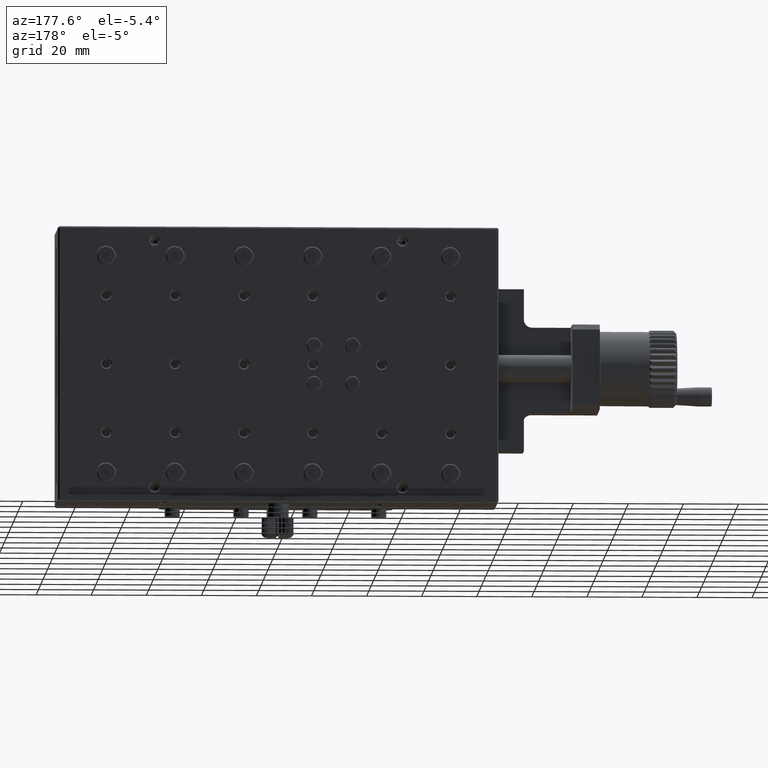
[diagram: clean part render]
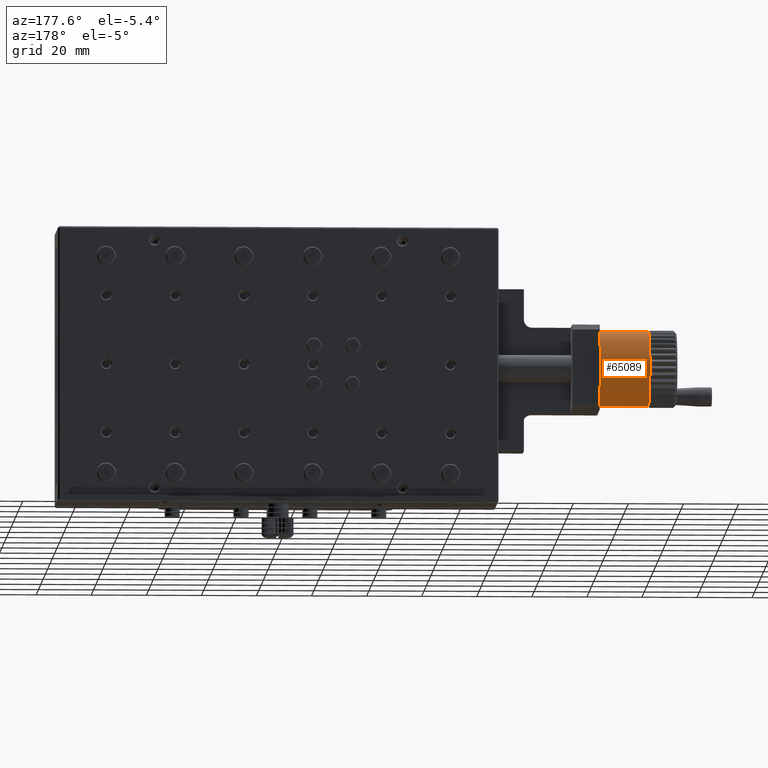
[diagram: same view with one face highlighted and labeled with its STEP entity id]
A machine part, auxiliary view. The second image highlights one B-rep face of the part: STEP entity #65089.
In plain terms, the highlighted cylindrical surface (bore or boss wall) has radius 13.5 mm, axis along (1, 0, 0).
Its self-contained STEP definition (entity closure, byte-faithful):
#91 = AXIS2_PLACEMENT_3D ( 'NONE', #26480, #4098, #4468 ) ;
#209 = ORIENTED_EDGE ( 'NONE', *, *, #65508, .T. ) ;
#292 = DIRECTION ( 'NONE',  ( 0.000000000000000000, 0.000000000000000000, -1.000000000000000000 ) ) ;
#353 = CARTESIAN_POINT ( 'NONE',  ( -214.9999999999999716, 15.50000000000000000, 0.000000000000000000 ) ) ;
#442 = CARTESIAN_POINT ( 'NONE',  ( 250.0000000000000000, 15.50000000000000000, 0.000000000000000000 ) ) ;
#550 = DIRECTION ( 'NONE',  ( 1.000000000000000000, 0.000000000000000000, 0.000000000000000000 ) ) ;
#581 = DIRECTION ( 'NONE',  ( 0.000000000000000000, 0.000000000000000000, -1.000000000000000000 ) ) ;
#632 = AXIS2_PLACEMENT_3D ( 'NONE', #62389, #40017, #72343 ) ;
#634 = DIRECTION ( 'NONE',  ( 0.000000000000000000, 0.000000000000000000, -1.000000000000000000 ) ) ;
#782 = CARTESIAN_POINT ( 'NONE',  ( -214.9999999999999716, 16.82432834666926169, -13.43488572449383689 ) ) ;
#908 = ORIENTED_EDGE ( 'NONE', *, *, #4540, .T. ) ;
#1023 = AXIS2_PLACEMENT_3D ( 'NONE', #29952, #44747, #62595 ) ;
#1188 = DIRECTION ( 'NONE',  ( 0.000000000000000000, 0.000000000000000000, -1.000000000000000000 ) ) ;
#1230 = VERTEX_POINT ( 'NONE', #5654 ) ;
#1260 = CARTESIAN_POINT ( 'NONE',  ( -197.0000000000000000, 25.00000000000000000, 9.591663046625438227 ) ) ;
#1343 = DIRECTION ( 'NONE',  ( 1.000000000000000000, 0.000000000000000000, 0.000000000000000000 ) ) ;
#1388 = CARTESIAN_POINT ( 'NONE',  ( -214.9999999999999716, 28.86194192194255947, 1.925748704954541424 ) ) ;
#1409 = DIRECTION ( 'NONE',  ( -1.000000000000000000, -0.000000000000000000, -0.000000000000000000 ) ) ;
#1951 = ORIENTED_EDGE ( 'NONE', *, *, #54478, .T. ) ;
#1973 = CARTESIAN_POINT ( 'NONE',  ( -197.0000000000000000, 3.665386240034578691, 6.495530552036306915 ) ) ;
#2017 = CIRCLE ( 'NONE', #37191, 13.50000000000000000 ) ;
#2176 = VERTEX_POINT ( 'NONE', #72616 ) ;
#2185 = CARTESIAN_POINT ( 'NONE',  ( -214.9999999999999716, 15.50000000000000000, 0.000000000000000000 ) ) ;
#2478 = CIRCLE ( 'NONE', #10680, 13.50000000000000000 ) ;
#2705 = EDGE_CURVE ( 'NONE', #50526, #6686, #16071, .T. ) ;
#2752 = DIRECTION ( 'NONE',  ( 1.000000000000000000, 0.000000000000000000, 0.000000000000000000 ) ) ;
#2913 = CARTESIAN_POINT ( 'NONE',  ( -214.9999999999999716, 15.50000000000000000, 0.000000000000000000 ) ) ;
#2923 = CARTESIAN_POINT ( 'NONE',  ( -214.9999999999999716, 15.50000000000000000, 0.000000000000000000 ) ) ;
#2927 = VERTEX_POINT ( 'NONE', #41487 ) ;
#3021 = EDGE_CURVE ( 'NONE', #38429, #55378, #57134, .T. ) ;
#3179 = DIRECTION ( 'NONE',  ( 0.000000000000000000, 0.000000000000000000, -1.000000000000000000 ) ) ;
#3237 = EDGE_LOOP ( 'NONE', ( #46497, #43294, #22372, #12529, #33394, #70496, #13261, #57442, #3853, #1951, #25988, #57968, #45396, #29816, #16655, #15339, #51866, #26859, #58327, #32617, #59361, #5489, #5915, #30717, #15901, #54043, #39965, #60923, #54761, #31232, #25462, #17246, #15078, #23512, #8829, #55682, #70412, #50834, #11703, #28479, #26991, #209, #8405, #45991, #8530, #43222, #7768, #36251, #908, #18176, #19534, #5326, #47294, #55658, #72610, #18008, #15283, #70789, #5363, #42583, #53921, #28873, #38588, #22045, #65617, #60424, #26198, #20959, #12019, #26063 ) ) ;
#3355 = VERTEX_POINT ( 'NONE', #69648 ) ;
#3518 = CIRCLE ( 'NONE', #22239, 13.50000000000000000 ) ;
#3831 = DIRECTION ( 'NONE',  ( 0.000000000000000000, 0.000000000000000000, -1.000000000000000000 ) ) ;
#3853 = ORIENTED_EDGE ( 'NONE', *, *, #50996, .T. ) ;
#3868 = DIRECTION ( 'NONE',  ( 0.000000000000000000, 0.000000000000000000, -1.000000000000000000 ) ) ;
#4098 = DIRECTION ( 'NONE',  ( 1.000000000000000000, 0.000000000000000000, 0.000000000000000000 ) ) ;
#4110 = CIRCLE ( 'NONE', #28651, 13.50000000000000000 ) ;
#4468 = DIRECTION ( 'NONE',  ( 0.000000000000000000, 0.000000000000000000, -1.000000000000000000 ) ) ;
#4495 = DIRECTION ( 'NONE',  ( 0.000000000000000000, 0.000000000000000000, -1.000000000000000000 ) ) ;
#4540 = EDGE_CURVE ( 'NONE', #55378, #44233, #48892, .T. ) ;
#4730 = CIRCLE ( 'NONE', #71515, 13.50000000000000000 ) ;
#4745 = DIRECTION ( 'NONE',  ( 0.000000000000000000, 0.000000000000000000, -1.000000000000000000 ) ) ;
#4766 = CIRCLE ( 'NONE', #68012, 13.50000000000000000 ) ;
#5107 = CIRCLE ( 'NONE', #25015, 13.50000000000000000 ) ;
#5326 = ORIENTED_EDGE ( 'NONE', *, *, #50163, .T. ) ;
#5339 = CARTESIAN_POINT ( 'NONE',  ( -214.9999999999999716, 2.107264129652191009, -1.698418648949400644 ) ) ;
#5363 = ORIENTED_EDGE ( 'NONE', *, *, #49445, .T. ) ;
#5452 = CARTESIAN_POINT ( 'NONE',  ( -214.9999999999999716, 25.98282780383322788, 8.506487009052621673 ) ) ;
#5469 = CARTESIAN_POINT ( 'NONE',  ( -214.9999999999999716, 15.50000000000000000, 0.000000000000000000 ) ) ;
#5489 = ORIENTED_EDGE ( 'NONE', *, *, #68873, .T. ) ;
#5540 = DIRECTION ( 'NONE',  ( 1.000000000000000000, 0.000000000000000000, 0.000000000000000000 ) ) ;
#5640 = DIRECTION ( 'NONE',  ( 0.000000000000000000, 0.000000000000000000, -1.000000000000000000 ) ) ;
#5654 = CARTESIAN_POINT ( 'NONE',  ( -214.9999999999999716, 14.40415436836752328, 13.45544954104588875 ) ) ;
#5655 = CARTESIAN_POINT ( 'NONE',  ( -197.0000000000000000, 15.50000000000000000, 0.000000000000000000 ) ) ;
#5848 = VERTEX_POINT ( 'NONE', #58309 ) ;
#5915 = ORIENTED_EDGE ( 'NONE', *, *, #57141, .T. ) ;
#5931 = VERTEX_POINT ( 'NONE', #17411 ) ;
#5949 = CIRCLE ( 'NONE', #11800, 13.50000000000000000 ) ;
#6686 = VERTEX_POINT ( 'NONE', #5339 ) ;
#6687 = DIRECTION ( 'NONE',  ( 1.000000000000000000, 0.000000000000000000, 0.000000000000000000 ) ) ;
#6734 = DIRECTION ( 'NONE',  ( -1.000000000000000000, -0.000000000000000000, -0.000000000000000000 ) ) ;
#6742 = AXIS2_PLACEMENT_3D ( 'NONE', #44576, #61420, #16653 ) ;
#6844 = CARTESIAN_POINT ( 'NONE',  ( -214.9999999999999716, 15.50000000000000000, 0.000000000000000000 ) ) ;
#6902 = CIRCLE ( 'NONE', #64311, 13.50000000000000000 ) ;
#7414 = AXIS2_PLACEMENT_3D ( 'NONE', #54446, #59950, #72049 ) ;
#7416 = VERTEX_POINT ( 'NONE', #60477 ) ;
#7429 = CARTESIAN_POINT ( 'NONE',  ( -214.9999999999999716, 20.13599984153090006, 12.67901831646778277 ) ) ;
#7462 = CIRCLE ( 'NONE', #50748, 13.50000000000000000 ) ;
#7768 = ORIENTED_EDGE ( 'NONE', *, *, #69737, .T. ) ;
#7816 = DIRECTION ( 'NONE',  ( 0.000000000000000000, 0.000000000000000000, -1.000000000000000000 ) ) ;
#7990 = DIRECTION ( 'NONE',  ( 1.000000000000000000, 0.000000000000000000, 0.000000000000000000 ) ) ;
#8159 = DIRECTION ( 'NONE',  ( 1.000000000000000000, 0.000000000000000000, 0.000000000000000000 ) ) ;
#8179 = DIRECTION ( 'NONE',  ( 1.000000000000000000, 0.000000000000000000, 0.000000000000000000 ) ) ;
#8200 = AXIS2_PLACEMENT_3D ( 'NONE', #48154, #42610, #14741 ) ;
#8322 = CIRCLE ( 'NONE', #91, 13.50000000000000000 ) ;
#8352 = DIRECTION ( 'NONE',  ( 0.000000000000000000, 0.000000000000000000, -1.000000000000000000 ) ) ;
#8405 = ORIENTED_EDGE ( 'NONE', *, *, #27236, .T. ) ;
#8431 = DIRECTION ( 'NONE',  ( 0.000000000000000000, 0.000000000000000000, -1.000000000000000000 ) ) ;
#8530 = ORIENTED_EDGE ( 'NONE', *, *, #27647, .T. ) ;
#8574 = EDGE_CURVE ( 'NONE', #46353, #1230, #38607, .T. ) ;
#8626 = VERTEX_POINT ( 'NONE', #49569 ) ;
#8829 = ORIENTED_EDGE ( 'NONE', *, *, #52493, .T. ) ;
#9263 = CARTESIAN_POINT ( 'NONE',  ( -214.9999999999999716, 24.29547254239452769, 10.24156544459800955 ) ) ;
#9317 = AXIS2_PLACEMENT_3D ( 'NONE', #46553, #1409, #23778 ) ;
#9553 = CARTESIAN_POINT ( 'NONE',  ( -214.9999999999999716, 15.50000000000000000, 0.000000000000000000 ) ) ;
#9914 = AXIS2_PLACEMENT_3D ( 'NONE', #5655, #6734, #50040 ) ;
#9952 = DIRECTION ( 'NONE',  ( 0.000000000000000000, 0.000000000000000000, -1.000000000000000000 ) ) ;
#10173 = EDGE_CURVE ( 'NONE', #25862, #42743, #69126, .T. ) ;
#10391 = AXIS2_PLACEMENT_3D ( 'NONE', #6844, #1343, #29585 ) ;
#10508 = DIRECTION ( 'NONE',  ( 0.000000000000000000, 0.000000000000000000, -1.000000000000000000 ) ) ;
#10511 = CIRCLE ( 'NONE', #9317, 13.50000000000000000 ) ;
#10660 = CIRCLE ( 'NONE', #20051, 13.50000000000000000 ) ;
#10680 = AXIS2_PLACEMENT_3D ( 'NONE', #21512, #44281, #581 ) ;
#10902 = VERTEX_POINT ( 'NONE', #41379 ) ;
#11063 = CARTESIAN_POINT ( 'NONE',  ( -214.9999999999999716, 15.50000000000000000, 0.000000000000000000 ) ) ;
#11309 = EDGE_CURVE ( 'NONE', #44233, #48863, #52288, .T. ) ;
#11568 = CARTESIAN_POINT ( 'NONE',  ( -214.9999999999999716, 15.50000000000000000, 0.000000000000000000 ) ) ;
#11572 = DIRECTION ( 'NONE',  ( 1.000000000000000000, 0.000000000000000000, 0.000000000000000000 ) ) ;
#11621 = VERTEX_POINT ( 'NONE', #43415 ) ;
#11703 = ORIENTED_EDGE ( 'NONE', *, *, #18263, .T. ) ;
#11800 = AXIS2_PLACEMENT_3D ( 'NONE', #353, #66428, #33408 ) ;
#11905 = ORIENTED_EDGE ( 'NONE', *, *, #38376, .T. ) ;
#11936 = DIRECTION ( 'NONE',  ( 0.000000000000000000, 0.000000000000000000, -1.000000000000000000 ) ) ;
#12019 = ORIENTED_EDGE ( 'NONE', *, *, #53993, .T. ) ;
#12052 = DIRECTION ( 'NONE',  ( 1.000000000000000000, 0.000000000000000000, 0.000000000000000000 ) ) ;
#12135 = AXIS2_PLACEMENT_3D ( 'NONE', #45753, #68112, #29238 ) ;
#12402 = EDGE_CURVE ( 'NONE', #34028, #57394, #64159, .T. ) ;
#12526 = VERTEX_POINT ( 'NONE', #1260 ) ;
#12529 = ORIENTED_EDGE ( 'NONE', *, *, #15598, .T. ) ;
#12553 = EDGE_CURVE ( 'NONE', #54288, #7416, #67643, .T. ) ;
#12555 = CARTESIAN_POINT ( 'NONE',  ( -214.9999999999999716, 15.50000000000000000, 0.000000000000000000 ) ) ;
#12697 = ORIENTED_EDGE ( 'NONE', *, *, #56193, .T. ) ;
#12931 = CARTESIAN_POINT ( 'NONE',  ( -214.9999999999999716, 15.50000000000000000, 0.000000000000000000 ) ) ;
#12968 = CARTESIAN_POINT ( 'NONE',  ( -197.0000000000000000, 15.50000000000000000, 0.000000000000000000 ) ) ;
#12977 = VERTEX_POINT ( 'NONE', #29768 ) ;
#13091 = DIRECTION ( 'NONE',  ( 0.000000000000000000, 0.000000000000000000, -1.000000000000000000 ) ) ;
#13116 = CARTESIAN_POINT ( 'NONE',  ( -214.9999999999999716, 15.50000000000000000, 0.000000000000000000 ) ) ;
#13261 = ORIENTED_EDGE ( 'NONE', *, *, #71376, .T. ) ;
#13262 = CARTESIAN_POINT ( 'NONE',  ( -214.9999999999999716, 15.50000000000000000, 0.000000000000000000 ) ) ;
#13383 = CARTESIAN_POINT ( 'NONE',  ( -197.0000000000000000, 15.50000000000000000, 0.000000000000000000 ) ) ;
#13847 = CARTESIAN_POINT ( 'NONE',  ( -214.9999999999999716, 2.107264129652179907, 1.698418648949298948 ) ) ;
#13908 = CIRCLE ( 'NONE', #10391, 13.50000000000000000 ) ;
#14033 = DIRECTION ( 'NONE',  ( 0.000000000000000000, 0.000000000000000000, -1.000000000000000000 ) ) ;
#14082 = EDGE_CURVE ( 'NONE', #47201, #19166, #6902, .T. ) ;
#14155 = CARTESIAN_POINT ( 'NONE',  ( -214.9999999999999716, 26.82952184123026740, 7.341112643808592964 ) ) ;
#14318 = DIRECTION ( 'NONE',  ( 0.000000000000000000, 0.000000000000000000, -1.000000000000000000 ) ) ;
#14411 = CIRCLE ( 'NONE', #7414, 13.50000000000000000 ) ;
#14455 = VERTEX_POINT ( 'NONE', #27770 ) ;
#14553 = DIRECTION ( 'NONE',  ( 1.000000000000000000, 0.000000000000000000, 0.000000000000000000 ) ) ;
#14741 = DIRECTION ( 'NONE',  ( 0.000000000000000000, 0.000000000000000000, -1.000000000000000000 ) ) ;
#14911 = DIRECTION ( 'NONE',  ( 1.000000000000000000, 0.000000000000000000, 0.000000000000000000 ) ) ;
#15072 = AXIS2_PLACEMENT_3D ( 'NONE', #48639, #58890, #42752 ) ;
#15078 = ORIENTED_EDGE ( 'NONE', *, *, #58004, .T. ) ;
#15172 = CIRCLE ( 'NONE', #30440, 13.50000000000000000 ) ;
#15237 = DIRECTION ( 'NONE',  ( 0.000000000000000000, 0.000000000000000000, -1.000000000000000000 ) ) ;
#15283 = ORIENTED_EDGE ( 'NONE', *, *, #17883, .T. ) ;
#15339 = ORIENTED_EDGE ( 'NONE', *, *, #43140, .T. ) ;
#15439 = EDGE_CURVE ( 'NONE', #61994, #69346, #52557, .T. ) ;
#15447 = DIRECTION ( 'NONE',  ( 0.000000000000000000, 0.000000000000000000, -1.000000000000000000 ) ) ;
#15449 = CARTESIAN_POINT ( 'NONE',  ( -214.9999999999999716, 15.50000000000000000, 0.000000000000000000 ) ) ;
#15514 = EDGE_CURVE ( 'NONE', #2927, #54819, #13908, .T. ) ;
#15577 = CARTESIAN_POINT ( 'NONE',  ( -214.9999999999999716, 15.50000000000000000, 0.000000000000000000 ) ) ;
#15598 = EDGE_CURVE ( 'NONE', #5848, #71174, #46716, .T. ) ;
#15901 = ORIENTED_EDGE ( 'NONE', *, *, #62886, .T. ) ;
#15960 = VERTEX_POINT ( 'NONE', #69467 ) ;
#16071 = CIRCLE ( 'NONE', #68774, 13.50000000000000000 ) ;
#16151 = VERTEX_POINT ( 'NONE', #71830 ) ;
#16247 = CARTESIAN_POINT ( 'NONE',  ( -214.9999999999999716, 2.625755264903073982, -4.062489692396653140 ) ) ;
#16355 = CARTESIAN_POINT ( 'NONE',  ( -214.9999999999999716, 15.50000000000000000, 0.000000000000000000 ) ) ;
#16368 = CIRCLE ( 'NONE', #64466, 13.50000000000000000 ) ;
#16399 = CIRCLE ( 'NONE', #8200, 13.50000000000000000 ) ;
#16653 = DIRECTION ( 'NONE',  ( 0.000000000000000000, 0.000000000000000000, -1.000000000000000000 ) ) ;
#16655 = ORIENTED_EDGE ( 'NONE', *, *, #14082, .T. ) ;
#17103 = CARTESIAN_POINT ( 'NONE',  ( -214.9999999999999716, 27.33325635435728884, 6.498003081875449283 ) ) ;
#17246 = ORIENTED_EDGE ( 'NONE', *, *, #18716, .T. ) ;
#17411 = CARTESIAN_POINT ( 'NONE',  ( -197.0000000000000000, 3.665386240034577803, -6.495530552036306915 ) ) ;
#17514 = AXIS2_PLACEMENT_3D ( 'NONE', #54990, #39916, #4745 ) ;
#17608 = DIRECTION ( 'NONE',  ( 1.000000000000000000, 0.000000000000000000, 0.000000000000000000 ) ) ;
#17788 = VERTEX_POINT ( 'NONE', #25105 ) ;
#17883 = EDGE_CURVE ( 'NONE', #56952, #10902, #5949, .T. ) ;
#18008 = ORIENTED_EDGE ( 'NONE', *, *, #50469, .T. ) ;
#18011 = AXIS2_PLACEMENT_3D ( 'NONE', #15577, #42763, #15237 ) ;
#18061 = DIRECTION ( 'NONE',  ( 1.000000000000000000, 0.000000000000000000, 0.000000000000000000 ) ) ;
#18176 = ORIENTED_EDGE ( 'NONE', *, *, #11309, .T. ) ;
#18263 = EDGE_CURVE ( 'NONE', #37051, #49717, #23550, .T. ) ;
#18298 = EDGE_CURVE ( 'NONE', #27362, #26340, #7462, .T. ) ;
#18307 = CARTESIAN_POINT ( 'NONE',  ( -214.9999999999999716, 3.558035218903775387, 6.295988974502535029 ) ) ;
#18338 = CIRCLE ( 'NONE', #60500, 13.50000000000000000 ) ;
#18339 = CIRCLE ( 'NONE', #65224, 13.50000000000000000 ) ;
#18529 = CARTESIAN_POINT ( 'NONE',  ( -214.9999999999999716, 7.657982292777148814, 10.98875599326890473 ) ) ;
#18631 = DIRECTION ( 'NONE',  ( 0.000000000000000000, 0.000000000000000000, -1.000000000000000000 ) ) ;
#18716 = EDGE_CURVE ( 'NONE', #57394, #60406, #56606, .T. ) ;
#18757 = CIRCLE ( 'NONE', #17514, 13.50000000000000000 ) ;
#18871 = VERTEX_POINT ( 'NONE', #18529 ) ;
#18916 = VERTEX_POINT ( 'NONE', #39819 ) ;
#19095 = CIRCLE ( 'NONE', #60081, 13.50000000000000000 ) ;
#19166 = VERTEX_POINT ( 'NONE', #38660 ) ;
#19168 = EDGE_CURVE ( 'NONE', #68145, #38560, #26254, .T. ) ;
#19195 = AXIS2_PLACEMENT_3D ( 'NONE', #13116, #36226, #8352 ) ;
#19253 = VERTEX_POINT ( 'NONE', #68694 ) ;
#19333 = CIRCLE ( 'NONE', #18011, 13.50000000000000000 ) ;
#19506 = AXIS2_PLACEMENT_3D ( 'NONE', #60028, #60404, #10508 ) ;
#19534 = ORIENTED_EDGE ( 'NONE', *, *, #49997, .T. ) ;
#19595 = AXIS2_PLACEMENT_3D ( 'NONE', #42054, #36184, #64071 ) ;
#19844 = VERTEX_POINT ( 'NONE', #39311 ) ;
#19911 = CARTESIAN_POINT ( 'NONE',  ( -214.9999999999999716, 16.82432834666915866, 13.43488572449384577 ) ) ;
#19925 = CIRCLE ( 'NONE', #62062, 13.50000000000000000 ) ;
#19939 = EDGE_CURVE ( 'NONE', #6686, #37051, #38038, .T. ) ;
#20051 = AXIS2_PLACEMENT_3D ( 'NONE', #12931, #40819, #69789 ) ;
#20308 = EDGE_CURVE ( 'NONE', #18871, #44190, #4110, .T. ) ;
#20625 = EDGE_CURVE ( 'NONE', #54819, #46353, #30916, .T. ) ;
#20685 = VERTEX_POINT ( 'NONE', #50158 ) ;
#20802 = AXIS2_PLACEMENT_3D ( 'NONE', #9553, #21619, #26801 ) ;
#20879 = EDGE_CURVE ( 'NONE', #10902, #8626, #19333, .T. ) ;
#20959 = ORIENTED_EDGE ( 'NONE', *, *, #64046, .T. ) ;
#21010 = CARTESIAN_POINT ( 'NONE',  ( -215.0000000000000000, 14.40415436836761920, -13.45544954104589763 ) ) ;
#21324 = CARTESIAN_POINT ( 'NONE',  ( -214.9999999999999716, 3.131904351292626565, 5.411119110168035817 ) ) ;
#21481 = CARTESIAN_POINT ( 'NONE',  ( -214.9999999999999716, 25.33664548621541357, 9.246102183002193442 ) ) ;
#21512 = CARTESIAN_POINT ( 'NONE',  ( -214.9999999999999716, 15.50000000000000000, 0.000000000000000000 ) ) ;
#21530 = AXIS2_PLACEMENT_3D ( 'NONE', #34578, #18061, #40442 ) ;
#21538 = CARTESIAN_POINT ( 'NONE',  ( -214.9999999999999716, 12.97670913836815210, -13.26208894660283910 ) ) ;
#21619 = DIRECTION ( 'NONE',  ( 1.000000000000000000, 0.000000000000000000, 0.000000000000000000 ) ) ;
#21636 = AXIS2_PLACEMENT_3D ( 'NONE', #69613, #14553, #48335 ) ;
#21656 = VERTEX_POINT ( 'NONE', #23555 ) ;
#21783 = CIRCLE ( 'NONE', #51054, 13.50000000000000000 ) ;
#21831 = VERTEX_POINT ( 'NONE', #71125 ) ;
#21841 = AXIS2_PLACEMENT_3D ( 'NONE', #33056, #65730, #15447 ) ;
#22045 = ORIENTED_EDGE ( 'NONE', *, *, #65656, .T. ) ;
#22137 = CARTESIAN_POINT ( 'NONE',  ( -214.9999999999999716, 2.019226544854068717, 0.7202409673386021005 ) ) ;
#22159 = AXIS2_PLACEMENT_3D ( 'NONE', #55785, #5540, #9952 ) ;
#22239 = AXIS2_PLACEMENT_3D ( 'NONE', #60183, #23393, #51636 ) ;
#22294 = AXIS2_PLACEMENT_3D ( 'NONE', #70679, #42794, #49038 ) ;
#22372 = ORIENTED_EDGE ( 'NONE', *, *, #50377, .T. ) ;
#22781 = CIRCLE ( 'NONE', #21636, 13.50000000000000000 ) ;
#22788 = CIRCLE ( 'NONE', #9914, 13.50000000000000000 ) ;
#22916 = DIRECTION ( 'NONE',  ( 1.000000000000000000, 0.000000000000000000, 0.000000000000000000 ) ) ;
#23191 = VERTEX_POINT ( 'NONE', #17103 ) ;
#23228 = CARTESIAN_POINT ( 'NONE',  ( -214.9999999999999716, 15.50000000000000000, 0.000000000000000000 ) ) ;
#23270 = VERTEX_POINT ( 'NONE', #36522 ) ;
#23317 = AXIS2_PLACEMENT_3D ( 'NONE', #12555, #57665, #47054 ) ;
#23393 = DIRECTION ( 'NONE',  ( 1.000000000000000000, 0.000000000000000000, 0.000000000000000000 ) ) ;
#23512 = ORIENTED_EDGE ( 'NONE', *, *, #42355, .T. ) ;
#23550 = CIRCLE ( 'NONE', #64564, 13.50000000000000000 ) ;
#23555 = CARTESIAN_POINT ( 'NONE',  ( -214.9999999999999716, 4.296857362316023554, 7.532568953531544764 ) ) ;
#23765 = CARTESIAN_POINT ( 'NONE',  ( -214.9999999999999716, 15.50000000000000000, 0.000000000000000000 ) ) ;
#23778 = DIRECTION ( 'NONE',  ( 0.000000000000000000, 1.798972493605577581E-15, -1.000000000000000000 ) ) ;
#23932 = DIRECTION ( 'NONE',  ( 0.000000000000000000, 0.000000000000000000, -1.000000000000000000 ) ) ;
#23944 = CIRCLE ( 'NONE', #33321, 13.50000000000000000 ) ;
#23975 = DIRECTION ( 'NONE',  ( -1.000000000000000000, -0.000000000000000000, -0.000000000000000000 ) ) ;
#24300 = DIRECTION ( 'NONE',  ( 0.000000000000000000, 0.000000000000000000, -1.000000000000000000 ) ) ;
#24568 = DIRECTION ( 'NONE',  ( 0.000000000000000000, 0.000000000000000000, -1.000000000000000000 ) ) ;
#24621 = CARTESIAN_POINT ( 'NONE',  ( -215.0000000000000000, 12.01920177033145087, -13.04354413816798086 ) ) ;
#24622 = EDGE_CURVE ( 'NONE', #12977, #47201, #70668, .T. ) ;
#24868 = DIRECTION ( 'NONE',  ( 1.000000000000000000, 0.000000000000000000, 0.000000000000000000 ) ) ;
#25015 = AXIS2_PLACEMENT_3D ( 'NONE', #41028, #63405, #18631 ) ;
#25081 = CARTESIAN_POINT ( 'NONE',  ( -214.9999999999999716, 28.86194192194257369, -1.925748704954436397 ) ) ;
#25105 = CARTESIAN_POINT ( 'NONE',  ( -214.9999999999999716, 26.82952184123031714, -7.341112643808510363 ) ) ;
#25219 = AXIS2_PLACEMENT_3D ( 'NONE', #36490, #54808, #31355 ) ;
#25444 = CARTESIAN_POINT ( 'NONE',  ( -214.9999999999999716, 15.50000000000000000, 0.000000000000000000 ) ) ;
#25445 = CIRCLE ( 'NONE', #62922, 13.50000000000000000 ) ;
#25462 = ORIENTED_EDGE ( 'NONE', *, *, #12402, .T. ) ;
#25492 = DIRECTION ( 'NONE',  ( 1.000000000000000000, 0.000000000000000000, 0.000000000000000000 ) ) ;
#25506 = VERTEX_POINT ( 'NONE', #44215 ) ;
#25696 = CIRCLE ( 'NONE', #22159, 13.50000000000000000 ) ;
#25791 = CARTESIAN_POINT ( 'NONE',  ( -214.9999999999999716, 15.50000000000000000, 0.000000000000000000 ) ) ;
#25813 = DIRECTION ( 'NONE',  ( 1.000000000000000000, 0.000000000000000000, 0.000000000000000000 ) ) ;
#25823 = DIRECTION ( 'NONE',  ( 1.000000000000000000, 0.000000000000000000, 0.000000000000000000 ) ) ;
#25862 = VERTEX_POINT ( 'NONE', #25081 ) ;
#25937 = FACE_OUTER_BOUND ( 'NONE', #3237, .T. ) ;
#25988 = ORIENTED_EDGE ( 'NONE', *, *, #48121, .T. ) ;
#26063 = ORIENTED_EDGE ( 'NONE', *, *, #10173, .T. ) ;
#26198 = ORIENTED_EDGE ( 'NONE', *, *, #60267, .T. ) ;
#26214 = CIRCLE ( 'NONE', #19195, 13.50000000000000000 ) ;
#26254 = CIRCLE ( 'NONE', #21530, 13.50000000000000000 ) ;
#26340 = VERTEX_POINT ( 'NONE', #71817 ) ;
#26385 = DIRECTION ( 'NONE',  ( 0.000000000000000000, 0.000000000000000000, -1.000000000000000000 ) ) ;
#26475 = CARTESIAN_POINT ( 'NONE',  ( -214.9999999999999716, 15.50000000000000000, 0.000000000000000000 ) ) ;
#26480 = CARTESIAN_POINT ( 'NONE',  ( -214.9999999999999716, 15.50000000000000000, 0.000000000000000000 ) ) ;
#26801 = DIRECTION ( 'NONE',  ( 0.000000000000000000, 0.000000000000000000, -1.000000000000000000 ) ) ;
#26859 = ORIENTED_EDGE ( 'NONE', *, *, #20625, .T. ) ;
#26991 = ORIENTED_EDGE ( 'NONE', *, *, #67761, .T. ) ;
#27120 = EDGE_CURVE ( 'NONE', #44190, #43344, #21783, .T. ) ;
#27236 = EDGE_CURVE ( 'NONE', #19253, #27362, #42909, .T. ) ;
#27337 = CARTESIAN_POINT ( 'NONE',  ( -214.9999999999999716, 15.50000000000000000, 0.000000000000000000 ) ) ;
#27362 = VERTEX_POINT ( 'NONE', #71748 ) ;
#27450 = CIRCLE ( 'NONE', #68463, 13.50000000000000000 ) ;
#27464 = CARTESIAN_POINT ( 'NONE',  ( -214.9999999999999716, 15.50000000000000000, 0.000000000000000000 ) ) ;
#27647 = EDGE_CURVE ( 'NONE', #26340, #3355, #38083, .T. ) ;
#27770 = CARTESIAN_POINT ( 'NONE',  ( -197.0000000000000000, 8.435238016802520278, -11.50387491764262116 ) ) ;
#27876 = VERTEX_POINT ( 'NONE', #21538 ) ;
#28285 = VERTEX_POINT ( 'NONE', #14155 ) ;
#28290 = CARTESIAN_POINT ( 'NONE',  ( -214.9999999999999716, 3.558035218903823349, -6.295988974502618518 ) ) ;
#28336 = FACE_OUTER_BOUND ( 'NONE', #70619, .T. ) ;
#28479 = ORIENTED_EDGE ( 'NONE', *, *, #41392, .T. ) ;
#28510 = VERTEX_POINT ( 'NONE', #72458 ) ;
#28595 = AXIS2_PLACEMENT_3D ( 'NONE', #46043, #42993, #68788 ) ;
#28651 = AXIS2_PLACEMENT_3D ( 'NONE', #34820, #46199, #63076 ) ;
#28873 = ORIENTED_EDGE ( 'NONE', *, *, #54435, .T. ) ;
#29082 = CARTESIAN_POINT ( 'NONE',  ( -214.9999999999999716, 15.50000000000000000, 0.000000000000000000 ) ) ;
#29238 = DIRECTION ( 'NONE',  ( 0.000000000000000000, 0.000000000000000000, -1.000000000000000000 ) ) ;
#29263 = AXIS2_PLACEMENT_3D ( 'NONE', #2185, #57920, #24568 ) ;
#29585 = DIRECTION ( 'NONE',  ( 0.000000000000000000, 0.000000000000000000, -1.000000000000000000 ) ) ;
#29768 = CARTESIAN_POINT ( 'NONE',  ( -214.9999999999999716, 21.46056298632530712, 12.11287285849433459 ) ) ;
#29780 = AXIS2_PLACEMENT_3D ( 'NONE', #62842, #62458, #7816 ) ;
#29816 = ORIENTED_EDGE ( 'NONE', *, *, #24622, .T. ) ;
#29890 = CARTESIAN_POINT ( 'NONE',  ( -214.9999999999999716, 23.52761125165472222, 10.85391439031589833 ) ) ;
#29952 = CARTESIAN_POINT ( 'NONE',  ( -214.9999999999999716, 15.50000000000000000, 0.000000000000000000 ) ) ;
#30068 = AXIS2_PLACEMENT_3D ( 'NONE', #45278, #61063, #33178 ) ;
#30301 = AXIS2_PLACEMENT_3D ( 'NONE', #58504, #25492, #3831 ) ;
#30440 = AXIS2_PLACEMENT_3D ( 'NONE', #27337, #22916, #62184 ) ;
#30717 = ORIENTED_EDGE ( 'NONE', *, *, #12553, .T. ) ;
#30916 = CIRCLE ( 'NONE', #12135, 13.50000000000000000 ) ;
#31051 = CARTESIAN_POINT ( 'NONE',  ( -214.9999999999999716, 15.50000000000000000, 0.000000000000000000 ) ) ;
#31062 = AXIS2_PLACEMENT_3D ( 'NONE', #39954, #12052, #51328 ) ;
#31232 = ORIENTED_EDGE ( 'NONE', *, *, #68036, .T. ) ;
#31248 = CIRCLE ( 'NONE', #62872, 13.50000000000000000 ) ;
#31355 = DIRECTION ( 'NONE',  ( 0.000000000000000000, 0.000000000000000000, -1.000000000000000000 ) ) ;
#31723 = DIRECTION ( 'NONE',  ( 0.000000000000000000, 0.000000000000000000, -1.000000000000000000 ) ) ;
#31758 = AXIS2_PLACEMENT_3D ( 'NONE', #25791, #8179, #14033 ) ;
#32173 = VERTEX_POINT ( 'NONE', #66855 ) ;
#32289 = VERTEX_POINT ( 'NONE', #782 ) ;
#32445 = CARTESIAN_POINT ( 'NONE',  ( -214.9999999999999716, 15.50000000000000000, 0.000000000000000000 ) ) ;
#32588 = VERTEX_POINT ( 'NONE', #1388 ) ;
#32617 = ORIENTED_EDGE ( 'NONE', *, *, #59434, .T. ) ;
#32643 = CARTESIAN_POINT ( 'NONE',  ( -214.9999999999999716, 6.531768166319986690, 10.09063019723586940 ) ) ;
#33056 = CARTESIAN_POINT ( 'NONE',  ( -214.9999999999999716, 15.50000000000000000, 0.000000000000000000 ) ) ;
#33178 = DIRECTION ( 'NONE',  ( 0.000000000000000000, 0.000000000000000000, -1.000000000000000000 ) ) ;
#33321 = AXIS2_PLACEMENT_3D ( 'NONE', #27464, #38485, #292 ) ;
#33394 = ORIENTED_EDGE ( 'NONE', *, *, #63596, .T. ) ;
#33408 = DIRECTION ( 'NONE',  ( 0.000000000000000000, 0.000000000000000000, -1.000000000000000000 ) ) ;
#33781 = CARTESIAN_POINT ( 'NONE',  ( -214.9999999999999716, 28.99106572705489882, -0.4910657270515367823 ) ) ;
#33929 = AXIS2_PLACEMENT_3D ( 'NONE', #23765, #24868, #34391 ) ;
#33969 = CARTESIAN_POINT ( 'NONE',  ( -214.9999999999999716, 15.50000000000000000, 0.000000000000000000 ) ) ;
#33972 = DIRECTION ( 'NONE',  ( 0.000000000000000000, 0.000000000000000000, -1.000000000000000000 ) ) ;
#34028 = VERTEX_POINT ( 'NONE', #18307 ) ;
#34036 = CARTESIAN_POINT ( 'NONE',  ( -214.9999999999999716, 15.50000000000000000, 0.000000000000000000 ) ) ;
#34391 = DIRECTION ( 'NONE',  ( 0.000000000000000000, 0.000000000000000000, -1.000000000000000000 ) ) ;
#34578 = CARTESIAN_POINT ( 'NONE',  ( -214.9999999999999716, 15.50000000000000000, 0.000000000000000000 ) ) ;
#34820 = CARTESIAN_POINT ( 'NONE',  ( -214.9999999999999716, 15.50000000000000000, 0.000000000000000000 ) ) ;
#35203 = VERTEX_POINT ( 'NONE', #13847 ) ;
#35234 = DIRECTION ( 'NONE',  ( 0.000000000000000000, 0.000000000000000000, -1.000000000000000000 ) ) ;
#35529 = AXIS2_PLACEMENT_3D ( 'NONE', #41857, #65316, #14318 ) ;
#35732 = AXIS2_PLACEMENT_3D ( 'NONE', #36853, #2752, #52289 ) ;
#35956 = CARTESIAN_POINT ( 'NONE',  ( -214.9999999999999716, 28.68657557921388346, -2.892096902539758485 ) ) ;
#36040 = CARTESIAN_POINT ( 'NONE',  ( -214.9999999999999716, 15.50000000000000000, 0.000000000000000000 ) ) ;
#36138 = DIRECTION ( 'NONE',  ( -1.000000000000000000, -0.000000000000000000, -0.000000000000000000 ) ) ;
#36184 = DIRECTION ( 'NONE',  ( 1.000000000000000000, 0.000000000000000000, 0.000000000000000000 ) ) ;
#36226 = DIRECTION ( 'NONE',  ( 1.000000000000000000, 0.000000000000000000, 0.000000000000000000 ) ) ;
#36251 = ORIENTED_EDGE ( 'NONE', *, *, #3021, .T. ) ;
#36490 = CARTESIAN_POINT ( 'NONE',  ( -214.9999999999999716, 15.50000000000000000, 0.000000000000000000 ) ) ;
#36522 = CARTESIAN_POINT ( 'NONE',  ( -214.9999999999999716, 4.874139746850294941, 8.327129990611009447 ) ) ;
#36560 = EDGE_CURVE ( 'NONE', #18916, #32588, #31248, .T. ) ;
#36649 = DIRECTION ( 'NONE',  ( 1.000000000000000000, 0.000000000000000000, 0.000000000000000000 ) ) ;
#36853 = CARTESIAN_POINT ( 'NONE',  ( -214.9999999999999716, 15.50000000000000000, 0.000000000000000000 ) ) ;
#37051 = VERTEX_POINT ( 'NONE', #66571 ) ;
#37063 = VERTEX_POINT ( 'NONE', #43835 ) ;
#37188 = VERTEX_POINT ( 'NONE', #1973 ) ;
#37191 = AXIS2_PLACEMENT_3D ( 'NONE', #32445, #37588, #31723 ) ;
#37213 = DIRECTION ( 'NONE',  ( 0.000000000000000000, 0.000000000000000000, -1.000000000000000000 ) ) ;
#37287 = DIRECTION ( 'NONE',  ( 0.000000000000000000, 0.000000000000000000, -1.000000000000000000 ) ) ;
#37347 = EDGE_CURVE ( 'NONE', #49525, #70924, #25445, .T. ) ;
#37588 = DIRECTION ( 'NONE',  ( 1.000000000000000000, 0.000000000000000000, 0.000000000000000000 ) ) ;
#37695 = AXIS2_PLACEMENT_3D ( 'NONE', #65017, #43386, #37854 ) ;
#37854 = DIRECTION ( 'NONE',  ( 0.000000000000000000, 0.000000000000000000, -1.000000000000000000 ) ) ;
#38038 = CIRCLE ( 'NONE', #65009, 13.50000000000000000 ) ;
#38083 = CIRCLE ( 'NONE', #31062, 13.50000000000000000 ) ;
#38376 = EDGE_CURVE ( 'NONE', #59822, #14455, #51117, .T. ) ;
#38429 = VERTEX_POINT ( 'NONE', #55599 ) ;
#38485 = DIRECTION ( 'NONE',  ( 1.000000000000000000, 0.000000000000000000, 0.000000000000000000 ) ) ;
#38543 = EDGE_CURVE ( 'NONE', #23270, #21656, #18339, .T. ) ;
#38560 = VERTEX_POINT ( 'NONE', #62942 ) ;
#38588 = ORIENTED_EDGE ( 'NONE', *, *, #51260, .T. ) ;
#38607 = CIRCLE ( 'NONE', #67924, 13.50000000000000000 ) ;
#38660 = CARTESIAN_POINT ( 'NONE',  ( -214.9999999999999716, 19.20193732224784355, 12.98251362649577523 ) ) ;
#39202 = DIRECTION ( 'NONE',  ( 0.000000000000000000, 0.000000000000000000, -1.000000000000000000 ) ) ;
#39239 = AXIS2_PLACEMENT_3D ( 'NONE', #15449, #7990, #63022 ) ;
#39311 = CARTESIAN_POINT ( 'NONE',  ( -214.9999999999999716, 25.33664548621547752, -9.246102183002125940 ) ) ;
#39345 = DIRECTION ( 'NONE',  ( 1.000000000000000000, 0.000000000000000000, 0.000000000000000000 ) ) ;
#39348 = CYLINDRICAL_SURFACE ( 'NONE', #61605, 13.50000000000000000 ) ;
#39454 = DIRECTION ( 'NONE',  ( 0.000000000000000000, 0.000000000000000000, -1.000000000000000000 ) ) ;
#39497 = CARTESIAN_POINT ( 'NONE',  ( -214.9999999999999716, 12.97670913836804907, 13.26208894660281956 ) ) ;
#39819 = CARTESIAN_POINT ( 'NONE',  ( -214.9999999999999716, 28.99106572705490237, 0.4910657270514413586 ) ) ;
#39829 = DIRECTION ( 'NONE',  ( 1.000000000000000000, 0.000000000000000000, 0.000000000000000000 ) ) ;
#39916 = DIRECTION ( 'NONE',  ( 1.000000000000000000, 0.000000000000000000, 0.000000000000000000 ) ) ;
#39954 = CARTESIAN_POINT ( 'NONE',  ( -214.9999999999999716, 15.50000000000000000, 0.000000000000000000 ) ) ;
#39965 = ORIENTED_EDGE ( 'NONE', *, *, #27120, .T. ) ;
#40017 = DIRECTION ( 'NONE',  ( 1.000000000000000000, 0.000000000000000000, 0.000000000000000000 ) ) ;
#40442 = DIRECTION ( 'NONE',  ( 0.000000000000000000, 0.000000000000000000, -1.000000000000000000 ) ) ;
#40819 = DIRECTION ( 'NONE',  ( 1.000000000000000000, 0.000000000000000000, 0.000000000000000000 ) ) ;
#41028 = CARTESIAN_POINT ( 'NONE',  ( -214.9999999999999716, 15.50000000000000000, 0.000000000000000000 ) ) ;
#41220 = DIRECTION ( 'NONE',  ( 0.000000000000000000, 8.994862468027887907E-16, -1.000000000000000000 ) ) ;
#41379 = CARTESIAN_POINT ( 'NONE',  ( -214.9999999999999716, 20.13599984153099243, -12.67901831646774546 ) ) ;
#41392 = EDGE_CURVE ( 'NONE', #49717, #32173, #25696, .T. ) ;
#41487 = CARTESIAN_POINT ( 'NONE',  ( -214.9999999999999716, 17.79757127713727982, 13.30305101194736572 ) ) ;
#41699 = DIRECTION ( 'NONE',  ( 1.000000000000000000, 0.000000000000000000, 0.000000000000000000 ) ) ;
#41857 = CARTESIAN_POINT ( 'NONE',  ( -214.9999999999999716, 15.50000000000000000, 0.000000000000000000 ) ) ;
#42054 = CARTESIAN_POINT ( 'NONE',  ( -214.9999999999999716, 15.50000000000000000, 0.000000000000000000 ) ) ;
#42073 = CARTESIAN_POINT ( 'NONE',  ( -214.9999999999999716, 27.33325635435733503, -6.498003081875362241 ) ) ;
#42154 = VERTEX_POINT ( 'NONE', #39497 ) ;
#42355 = EDGE_CURVE ( 'NONE', #2176, #35203, #51538, .T. ) ;
#42405 = AXIS2_PLACEMENT_3D ( 'NONE', #23228, #56252, #5640 ) ;
#42583 = ORIENTED_EDGE ( 'NONE', *, *, #52306, .T. ) ;
#42604 = DIRECTION ( 'NONE',  ( 1.000000000000000000, 0.000000000000000000, 0.000000000000000000 ) ) ;
#42610 = DIRECTION ( 'NONE',  ( 1.000000000000000000, 0.000000000000000000, 0.000000000000000000 ) ) ;
#42648 = EDGE_CURVE ( 'NONE', #17788, #68145, #16399, .T. ) ;
#42743 = VERTEX_POINT ( 'NONE', #33781 ) ;
#42752 = DIRECTION ( 'NONE',  ( 0.000000000000000000, 0.000000000000000000, -1.000000000000000000 ) ) ;
#42763 = DIRECTION ( 'NONE',  ( 1.000000000000000000, 0.000000000000000000, 0.000000000000000000 ) ) ;
#42794 = DIRECTION ( 'NONE',  ( 1.000000000000000000, 0.000000000000000000, 0.000000000000000000 ) ) ;
#42884 = EDGE_CURVE ( 'NONE', #37188, #21831, #62173, .T. ) ;
#42909 = CIRCLE ( 'NONE', #54627, 13.50000000000000000 ) ;
#42993 = DIRECTION ( 'NONE',  ( 1.000000000000000000, 0.000000000000000000, 0.000000000000000000 ) ) ;
#43140 = EDGE_CURVE ( 'NONE', #19166, #2927, #52811, .T. ) ;
#43222 = ORIENTED_EDGE ( 'NONE', *, *, #64461, .T. ) ;
#43256 = EDGE_CURVE ( 'NONE', #5931, #37188, #66846, .T. ) ;
#43294 = ORIENTED_EDGE ( 'NONE', *, *, #36560, .T. ) ;
#43344 = VERTEX_POINT ( 'NONE', #48602 ) ;
#43386 = DIRECTION ( 'NONE',  ( 1.000000000000000000, 0.000000000000000000, 0.000000000000000000 ) ) ;
#43415 = CARTESIAN_POINT ( 'NONE',  ( -214.9999999999999716, 28.30335430921657291, -4.280667989071973878 ) ) ;
#43632 = EDGE_CURVE ( 'NONE', #42743, #18916, #49304, .T. ) ;
#43835 = CARTESIAN_POINT ( 'NONE',  ( -214.9999999999999716, 27.95825804230635470, 5.200173703955375260 ) ) ;
#44190 = VERTEX_POINT ( 'NONE', #32643 ) ;
#44215 = CARTESIAN_POINT ( 'NONE',  ( -214.9999999999999716, 17.79757127713738640, -13.30305101194734618 ) ) ;
#44233 = VERTEX_POINT ( 'NONE', #55708 ) ;
#44281 = DIRECTION ( 'NONE',  ( 1.000000000000000000, 0.000000000000000000, 0.000000000000000000 ) ) ;
#44515 = DIRECTION ( 'NONE',  ( 0.000000000000000000, 0.000000000000000000, -1.000000000000000000 ) ) ;
#44576 = CARTESIAN_POINT ( 'NONE',  ( -214.9999999999999716, 15.50000000000000000, 0.000000000000000000 ) ) ;
#44747 = DIRECTION ( 'NONE',  ( 1.000000000000000000, 0.000000000000000000, 0.000000000000000000 ) ) ;
#44985 = CARTESIAN_POINT ( 'NONE',  ( -214.9999999999999716, 15.50000000000000000, 0.000000000000000000 ) ) ;
#45278 = CARTESIAN_POINT ( 'NONE',  ( -214.9999999999999716, 15.50000000000000000, 0.000000000000000000 ) ) ;
#45396 = ORIENTED_EDGE ( 'NONE', *, *, #54714, .T. ) ;
#45686 = CARTESIAN_POINT ( 'NONE',  ( -215.0000000000000000, 7.657982292777234079, -10.98875599326896690 ) ) ;
#45715 = AXIS2_PLACEMENT_3D ( 'NONE', #13262, #69056, #24300 ) ;
#45753 = CARTESIAN_POINT ( 'NONE',  ( -214.9999999999999716, 15.50000000000000000, 0.000000000000000000 ) ) ;
#45770 = CARTESIAN_POINT ( 'NONE',  ( -214.9999999999999716, 15.50000000000000000, 0.000000000000000000 ) ) ;
#45839 = EDGE_CURVE ( 'NONE', #28510, #15960, #2478, .T. ) ;
#45991 = ORIENTED_EDGE ( 'NONE', *, *, #18298, .T. ) ;
#46043 = CARTESIAN_POINT ( 'NONE',  ( -214.9999999999999716, 15.50000000000000000, 0.000000000000000000 ) ) ;
#46199 = DIRECTION ( 'NONE',  ( 1.000000000000000000, 0.000000000000000000, 0.000000000000000000 ) ) ;
#46353 = VERTEX_POINT ( 'NONE', #48139 ) ;
#46497 = ORIENTED_EDGE ( 'NONE', *, *, #43632, .T. ) ;
#46553 = CARTESIAN_POINT ( 'NONE',  ( -197.0000000000000000, 15.50000000000000000, 0.000000000000000000 ) ) ;
#46716 = CIRCLE ( 'NONE', #15072, 13.50000000000000000 ) ;
#46816 = DIRECTION ( 'NONE',  ( 1.000000000000000000, 0.000000000000000000, 0.000000000000000000 ) ) ;
#47054 = DIRECTION ( 'NONE',  ( 0.000000000000000000, 0.000000000000000000, -1.000000000000000000 ) ) ;
#47201 = VERTEX_POINT ( 'NONE', #7429 ) ;
#47294 = ORIENTED_EDGE ( 'NONE', *, *, #15439, .T. ) ;
#47326 = CIRCLE ( 'NONE', #29780, 13.50000000000000000 ) ;
#47521 = DIRECTION ( 'NONE',  ( 0.000000000000000000, 0.000000000000000000, -1.000000000000000000 ) ) ;
#47699 = DIRECTION ( 'NONE',  ( -1.000000000000000000, -0.000000000000000000, -0.000000000000000000 ) ) ;
#47751 = VERTEX_POINT ( 'NONE', #35956 ) ;
#48056 = AXIS2_PLACEMENT_3D ( 'NONE', #29082, #68313, #23932 ) ;
#48061 = EDGE_CURVE ( 'NONE', #43344, #23270, #18757, .T. ) ;
#48121 = EDGE_CURVE ( 'NONE', #60722, #49525, #65565, .T. ) ;
#48139 = CARTESIAN_POINT ( 'NONE',  ( -214.9999999999999716, 15.38529688144852159, 13.49951270211612453 ) ) ;
#48154 = CARTESIAN_POINT ( 'NONE',  ( -214.9999999999999716, 15.50000000000000000, 0.000000000000000000 ) ) ;
#48178 = CARTESIAN_POINT ( 'NONE',  ( -214.9999999999999716, 15.50000000000000000, 0.000000000000000000 ) ) ;
#48255 = CARTESIAN_POINT ( 'NONE',  ( -214.9999999999999716, 15.50000000000000000, 0.000000000000000000 ) ) ;
#48311 = DIRECTION ( 'NONE',  ( 1.000000000000000000, 0.000000000000000000, 0.000000000000000000 ) ) ;
#48335 = DIRECTION ( 'NONE',  ( 0.000000000000000000, 0.000000000000000000, -1.000000000000000000 ) ) ;
#48502 = DIRECTION ( 'NONE',  ( 0.000000000000000000, 0.000000000000000000, -1.000000000000000000 ) ) ;
#48602 = CARTESIAN_POINT ( 'NONE',  ( -214.9999999999999716, 5.821888595691050661, 9.411915832910167978 ) ) ;
#48639 = CARTESIAN_POINT ( 'NONE',  ( -214.9999999999999716, 15.50000000000000000, 0.000000000000000000 ) ) ;
#48645 = CIRCLE ( 'NONE', #39239, 13.50000000000000000 ) ;
#48797 = CIRCLE ( 'NONE', #21841, 13.50000000000000000 ) ;
#48863 = VERTEX_POINT ( 'NONE', #24621 ) ;
#48866 = DIRECTION ( 'NONE',  ( 0.000000000000000000, 0.000000000000000000, -1.000000000000000000 ) ) ;
#48892 = CIRCLE ( 'NONE', #19595, 13.50000000000000000 ) ;
#49038 = DIRECTION ( 'NONE',  ( 0.000000000000000000, 0.000000000000000000, -1.000000000000000000 ) ) ;
#49253 = EDGE_CURVE ( 'NONE', #21831, #12526, #10511, .T. ) ;
#49304 = CIRCLE ( 'NONE', #31758, 13.50000000000000000 ) ;
#49386 = CARTESIAN_POINT ( 'NONE',  ( -214.9999999999999716, 15.50000000000000000, 0.000000000000000000 ) ) ;
#49425 = CIRCLE ( 'NONE', #42405, 13.50000000000000000 ) ;
#49445 = EDGE_CURVE ( 'NONE', #8626, #61176, #15172, .T. ) ;
#49525 = VERTEX_POINT ( 'NONE', #29890 ) ;
#49569 = CARTESIAN_POINT ( 'NONE',  ( -214.9999999999999716, 21.46056298632539949, -12.11287285849429196 ) ) ;
#49717 = VERTEX_POINT ( 'NONE', #16247 ) ;
#49778 = CIRCLE ( 'NONE', #71873, 13.50000000000000000 ) ;
#49818 = CIRCLE ( 'NONE', #25219, 13.50000000000000000 ) ;
#49885 = EDGE_CURVE ( 'NONE', #28285, #67159, #71500, .T. ) ;
#49997 = EDGE_CURVE ( 'NONE', #48863, #27876, #16368, .T. ) ;
#50040 = DIRECTION ( 'NONE',  ( 0.000000000000000000, 0.000000000000000000, -1.000000000000000000 ) ) ;
#50158 = CARTESIAN_POINT ( 'NONE',  ( -214.9999999999999716, 10.64922203975105930, 12.59841074026256713 ) ) ;
#50163 = EDGE_CURVE ( 'NONE', #27876, #61994, #3518, .T. ) ;
#50377 = EDGE_CURVE ( 'NONE', #32588, #5848, #4766, .T. ) ;
#50469 = EDGE_CURVE ( 'NONE', #25506, #56952, #64530, .T. ) ;
#50526 = VERTEX_POINT ( 'NONE', #50804 ) ;
#50728 = CARTESIAN_POINT ( 'NONE',  ( -214.9999999999999716, 2.625755264903044228, 4.062489692396555441 ) ) ;
#50748 = AXIS2_PLACEMENT_3D ( 'NONE', #2923, #36649, #26385 ) ;
#50804 = CARTESIAN_POINT ( 'NONE',  ( -215.0000000000000000, 2.019226544854074046, -0.7202409673387017985 ) ) ;
#50834 = ORIENTED_EDGE ( 'NONE', *, *, #19939, .T. ) ;
#50841 = DIRECTION ( 'NONE',  ( 0.000000000000000000, 0.000000000000000000, -1.000000000000000000 ) ) ;
#50854 = CIRCLE ( 'NONE', #28595, 13.50000000000000000 ) ;
#50996 = EDGE_CURVE ( 'NONE', #67159, #62651, #10660, .T. ) ;
#51054 = AXIS2_PLACEMENT_3D ( 'NONE', #45770, #52346, #13091 ) ;
#51117 = CIRCLE ( 'NONE', #19506, 13.50000000000000000 ) ;
#51260 = EDGE_CURVE ( 'NONE', #19844, #56936, #8322, .T. ) ;
#51328 = DIRECTION ( 'NONE',  ( 0.000000000000000000, 0.000000000000000000, -1.000000000000000000 ) ) ;
#51538 = CIRCLE ( 'NONE', #48056, 13.50000000000000000 ) ;
#51636 = DIRECTION ( 'NONE',  ( 0.000000000000000000, 0.000000000000000000, -1.000000000000000000 ) ) ;
#51866 = ORIENTED_EDGE ( 'NONE', *, *, #15514, .T. ) ;
#52124 = CIRCLE ( 'NONE', #69739, 13.50000000000000000 ) ;
#52134 = DIRECTION ( 'NONE',  ( 0.000000000000000000, 0.000000000000000000, -1.000000000000000000 ) ) ;
#52288 = CIRCLE ( 'NONE', #30068, 13.50000000000000000 ) ;
#52289 = DIRECTION ( 'NONE',  ( 0.000000000000000000, 0.000000000000000000, -1.000000000000000000 ) ) ;
#52306 = EDGE_CURVE ( 'NONE', #61176, #28510, #49425, .T. ) ;
#52346 = DIRECTION ( 'NONE',  ( 1.000000000000000000, 0.000000000000000000, 0.000000000000000000 ) ) ;
#52493 = EDGE_CURVE ( 'NONE', #35203, #60392, #69342, .T. ) ;
#52557 = CIRCLE ( 'NONE', #1023, 13.50000000000000000 ) ;
#52811 = CIRCLE ( 'NONE', #69214, 13.50000000000000000 ) ;
#52907 = DIRECTION ( 'NONE',  ( 0.000000000000000000, 0.000000000000000000, -1.000000000000000000 ) ) ;
#53160 = DIRECTION ( 'NONE',  ( 1.000000000000000000, 0.000000000000000000, 0.000000000000000000 ) ) ;
#53288 = DIRECTION ( 'NONE',  ( 1.000000000000000000, 0.000000000000000000, 0.000000000000000000 ) ) ;
#53443 = CARTESIAN_POINT ( 'NONE',  ( -214.9999999999999716, 15.38529688144862284, -13.49951270211612631 ) ) ;
#53794 = CIRCLE ( 'NONE', #23317, 13.50000000000000000 ) ;
#53921 = ORIENTED_EDGE ( 'NONE', *, *, #45839, .T. ) ;
#53993 = EDGE_CURVE ( 'NONE', #47751, #25862, #19095, .T. ) ;
#54043 = ORIENTED_EDGE ( 'NONE', *, *, #20308, .T. ) ;
#54288 = VERTEX_POINT ( 'NONE', #60486 ) ;
#54435 = EDGE_CURVE ( 'NONE', #15960, #19844, #5107, .T. ) ;
#54446 = CARTESIAN_POINT ( 'NONE',  ( -214.9999999999999716, 15.50000000000000000, 0.000000000000000000 ) ) ;
#54478 = EDGE_CURVE ( 'NONE', #62651, #60722, #26214, .T. ) ;
#54615 = DIRECTION ( 'NONE',  ( 0.000000000000000000, 0.000000000000000000, -1.000000000000000000 ) ) ;
#54619 = CARTESIAN_POINT ( 'NONE',  ( -197.0000000000000000, 25.00000000000000000, -9.591663046625438227 ) ) ;
#54627 = AXIS2_PLACEMENT_3D ( 'NONE', #31051, #41699, #3179 ) ;
#54714 = EDGE_CURVE ( 'NONE', #70924, #12977, #47326, .T. ) ;
#54761 = ORIENTED_EDGE ( 'NONE', *, *, #38543, .T. ) ;
#54808 = DIRECTION ( 'NONE',  ( 1.000000000000000000, 0.000000000000000000, 0.000000000000000000 ) ) ;
#54819 = VERTEX_POINT ( 'NONE', #19911 ) ;
#54845 = CIRCLE ( 'NONE', #59559, 13.50000000000000000 ) ;
#54990 = CARTESIAN_POINT ( 'NONE',  ( -214.9999999999999716, 15.50000000000000000, 0.000000000000000000 ) ) ;
#55158 = CARTESIAN_POINT ( 'NONE',  ( -214.9999999999999716, 25.98282780383329893, -8.506487009052534631 ) ) ;
#55378 = VERTEX_POINT ( 'NONE', #69620 ) ;
#55599 = CARTESIAN_POINT ( 'NONE',  ( -214.9999999999999716, 8.477642936009974761, -11.52980924672344187 ) ) ;
#55658 = ORIENTED_EDGE ( 'NONE', *, *, #72104, .T. ) ;
#55682 = ORIENTED_EDGE ( 'NONE', *, *, #57443, .T. ) ;
#55708 = CARTESIAN_POINT ( 'NONE',  ( -214.9999999999999716, 10.64922203975115700, -12.59841074026260266 ) ) ;
#55785 = CARTESIAN_POINT ( 'NONE',  ( -214.9999999999999716, 15.50000000000000000, 0.000000000000000000 ) ) ;
#56100 = AXIS2_PLACEMENT_3D ( 'NONE', #34036, #56401, #634 ) ;
#56193 = EDGE_CURVE ( 'NONE', #12526, #59822, #49778, .T. ) ;
#56252 = DIRECTION ( 'NONE',  ( 1.000000000000000000, 0.000000000000000000, 0.000000000000000000 ) ) ;
#56401 = DIRECTION ( 'NONE',  ( 1.000000000000000000, 0.000000000000000000, 0.000000000000000000 ) ) ;
#56606 = CIRCLE ( 'NONE', #69510, 13.50000000000000000 ) ;
#56685 = CARTESIAN_POINT ( 'NONE',  ( -214.9999999999999716, 15.50000000000000000, 0.000000000000000000 ) ) ;
#56932 = CARTESIAN_POINT ( 'NONE',  ( -214.9999999999999716, 15.50000000000000000, 0.000000000000000000 ) ) ;
#56936 = VERTEX_POINT ( 'NONE', #55158 ) ;
#56952 = VERTEX_POINT ( 'NONE', #66529 ) ;
#57134 = CIRCLE ( 'NONE', #20802, 13.50000000000000000 ) ;
#57141 = EDGE_CURVE ( 'NONE', #20685, #54288, #27450, .T. ) ;
#57394 = VERTEX_POINT ( 'NONE', #21324 ) ;
#57442 = ORIENTED_EDGE ( 'NONE', *, *, #49885, .T. ) ;
#57443 = EDGE_CURVE ( 'NONE', #60392, #50526, #48645, .T. ) ;
#57665 = DIRECTION ( 'NONE',  ( 1.000000000000000000, 0.000000000000000000, 0.000000000000000000 ) ) ;
#57920 = DIRECTION ( 'NONE',  ( 1.000000000000000000, 0.000000000000000000, 0.000000000000000000 ) ) ;
#57968 = ORIENTED_EDGE ( 'NONE', *, *, #37347, .T. ) ;
#58004 = EDGE_CURVE ( 'NONE', #60406, #2176, #49818, .T. ) ;
#58309 = CARTESIAN_POINT ( 'NONE',  ( -214.9999999999999716, 28.68657557921386214, 2.892096902539849523 ) ) ;
#58327 = ORIENTED_EDGE ( 'NONE', *, *, #8574, .T. ) ;
#58419 = DIRECTION ( 'NONE',  ( 1.000000000000000000, 0.000000000000000000, 0.000000000000000000 ) ) ;
#58504 = CARTESIAN_POINT ( 'NONE',  ( -214.9999999999999716, 15.50000000000000000, 0.000000000000000000 ) ) ;
#58890 = DIRECTION ( 'NONE',  ( 1.000000000000000000, 0.000000000000000000, 0.000000000000000000 ) ) ;
#59189 = CIRCLE ( 'NONE', #632, 13.50000000000000000 ) ;
#59293 = AXIS2_PLACEMENT_3D ( 'NONE', #48178, #53288, #4495 ) ;
#59361 = ORIENTED_EDGE ( 'NONE', *, *, #63385, .T. ) ;
#59434 = EDGE_CURVE ( 'NONE', #1230, #42154, #64028, .T. ) ;
#59559 = AXIS2_PLACEMENT_3D ( 'NONE', #2913, #69681, #70767 ) ;
#59820 = AXIS2_PLACEMENT_3D ( 'NONE', #13383, #36138, #37213 ) ;
#59822 = VERTEX_POINT ( 'NONE', #54619 ) ;
#59950 = DIRECTION ( 'NONE',  ( 1.000000000000000000, 0.000000000000000000, 0.000000000000000000 ) ) ;
#60028 = CARTESIAN_POINT ( 'NONE',  ( -197.0000000000000000, 15.50000000000000000, 0.000000000000000000 ) ) ;
#60081 = AXIS2_PLACEMENT_3D ( 'NONE', #36040, #8159, #52907 ) ;
#60183 = CARTESIAN_POINT ( 'NONE',  ( -214.9999999999999716, 15.50000000000000000, 0.000000000000000000 ) ) ;
#60252 = DIRECTION ( 'NONE',  ( 0.000000000000000000, 0.000000000000000000, -1.000000000000000000 ) ) ;
#60267 = EDGE_CURVE ( 'NONE', #38560, #11621, #14411, .T. ) ;
#60392 = VERTEX_POINT ( 'NONE', #22137 ) ;
#60404 = DIRECTION ( 'NONE',  ( -1.000000000000000000, -0.000000000000000000, -0.000000000000000000 ) ) ;
#60406 = VERTEX_POINT ( 'NONE', #50728 ) ;
#60424 = ORIENTED_EDGE ( 'NONE', *, *, #19168, .T. ) ;
#60477 = CARTESIAN_POINT ( 'NONE',  ( -214.9999999999999716, 8.477642936009891272, 11.52980924672339214 ) ) ;
#60486 = CARTESIAN_POINT ( 'NONE',  ( -214.9999999999999716, 9.746124891407061952, 12.21240849442543741 ) ) ;
#60500 = AXIS2_PLACEMENT_3D ( 'NONE', #67872, #17608, #8431 ) ;
#60680 = AXIS2_PLACEMENT_3D ( 'NONE', #66127, #25823, #60252 ) ;
#60722 = VERTEX_POINT ( 'NONE', #9263 ) ;
#60740 = CARTESIAN_POINT ( 'NONE',  ( -214.9999999999999716, 22.32542355650434729, 11.64747153996589546 ) ) ;
#60923 = ORIENTED_EDGE ( 'NONE', *, *, #48061, .T. ) ;
#61063 = DIRECTION ( 'NONE',  ( 1.000000000000000000, 0.000000000000000000, 0.000000000000000000 ) ) ;
#61176 = VERTEX_POINT ( 'NONE', #67005 ) ;
#61420 = DIRECTION ( 'NONE',  ( 1.000000000000000000, 0.000000000000000000, 0.000000000000000000 ) ) ;
#61605 = AXIS2_PLACEMENT_3D ( 'NONE', #442, #48311, #72398 ) ;
#61682 = EDGE_CURVE ( 'NONE', #14455, #5931, #22788, .T. ) ;
#61994 = VERTEX_POINT ( 'NONE', #21010 ) ;
#62062 = AXIS2_PLACEMENT_3D ( 'NONE', #71679, #39345, #44515 ) ;
#62173 = CIRCLE ( 'NONE', #71522, 13.50000000000000000 ) ;
#62184 = DIRECTION ( 'NONE',  ( 0.000000000000000000, 0.000000000000000000, -1.000000000000000000 ) ) ;
#62389 = CARTESIAN_POINT ( 'NONE',  ( -214.9999999999999716, 15.50000000000000000, 0.000000000000000000 ) ) ;
#62458 = DIRECTION ( 'NONE',  ( 1.000000000000000000, 0.000000000000000000, 0.000000000000000000 ) ) ;
#62595 = DIRECTION ( 'NONE',  ( 0.000000000000000000, 0.000000000000000000, -1.000000000000000000 ) ) ;
#62651 = VERTEX_POINT ( 'NONE', #21481 ) ;
#62842 = CARTESIAN_POINT ( 'NONE',  ( -214.9999999999999716, 15.50000000000000000, 0.000000000000000000 ) ) ;
#62872 = AXIS2_PLACEMENT_3D ( 'NONE', #44985, #67363, #50841 ) ;
#62886 = EDGE_CURVE ( 'NONE', #7416, #18871, #50854, .T. ) ;
#62922 = AXIS2_PLACEMENT_3D ( 'NONE', #25444, #25813, #70920 ) ;
#62942 = CARTESIAN_POINT ( 'NONE',  ( -214.9999999999999716, 27.95825804230639733, -5.200173703955285553 ) ) ;
#63022 = DIRECTION ( 'NONE',  ( 0.000000000000000000, 0.000000000000000000, -1.000000000000000000 ) ) ;
#63076 = DIRECTION ( 'NONE',  ( 0.000000000000000000, 0.000000000000000000, -1.000000000000000000 ) ) ;
#63078 = CIRCLE ( 'NONE', #30301, 13.50000000000000000 ) ;
#63385 = EDGE_CURVE ( 'NONE', #42154, #16151, #23944, .T. ) ;
#63405 = DIRECTION ( 'NONE',  ( 1.000000000000000000, 0.000000000000000000, 0.000000000000000000 ) ) ;
#63529 = DIRECTION ( 'NONE',  ( 1.000000000000000000, 0.000000000000000000, 0.000000000000000000 ) ) ;
#63596 = EDGE_CURVE ( 'NONE', #71174, #37063, #22781, .T. ) ;
#63932 = CARTESIAN_POINT ( 'NONE',  ( -214.9999999999999716, 15.50000000000000000, 0.000000000000000000 ) ) ;
#64028 = CIRCLE ( 'NONE', #59293, 13.50000000000000000 ) ;
#64046 = EDGE_CURVE ( 'NONE', #11621, #47751, #52124, .T. ) ;
#64071 = DIRECTION ( 'NONE',  ( 0.000000000000000000, 0.000000000000000000, -1.000000000000000000 ) ) ;
#64076 = ORIENTED_EDGE ( 'NONE', *, *, #49253, .T. ) ;
#64089 = EDGE_CURVE ( 'NONE', #32289, #25506, #70891, .T. ) ;
#64159 = CIRCLE ( 'NONE', #6742, 13.50000000000000000 ) ;
#64311 = AXIS2_PLACEMENT_3D ( 'NONE', #5469, #66743, #39202 ) ;
#64461 = EDGE_CURVE ( 'NONE', #3355, #71093, #59189, .T. ) ;
#64466 = AXIS2_PLACEMENT_3D ( 'NONE', #56932, #6687, #1188 ) ;
#64530 = CIRCLE ( 'NONE', #22294, 13.50000000000000000 ) ;
#64531 = VERTEX_POINT ( 'NONE', #28290 ) ;
#64564 = AXIS2_PLACEMENT_3D ( 'NONE', #70777, #53160, #71519 ) ;
#64718 = CARTESIAN_POINT ( 'NONE',  ( -214.9999999999999716, 28.30335430921654449, 4.280667989072056479 ) ) ;
#65009 = AXIS2_PLACEMENT_3D ( 'NONE', #69032, #63529, #52134 ) ;
#65017 = CARTESIAN_POINT ( 'NONE',  ( -214.9999999999999716, 15.50000000000000000, 0.000000000000000000 ) ) ;
#65089 = ADVANCED_FACE ( 'NONE', ( #25937, #28336 ), #39348, .T. ) ;
#65131 = DIRECTION ( 'NONE',  ( 1.000000000000000000, 0.000000000000000000, 0.000000000000000000 ) ) ;
#65224 = AXIS2_PLACEMENT_3D ( 'NONE', #56685, #68423, #33972 ) ;
#65316 = DIRECTION ( 'NONE',  ( 1.000000000000000000, 0.000000000000000000, 0.000000000000000000 ) ) ;
#65508 = EDGE_CURVE ( 'NONE', #64531, #19253, #48797, .T. ) ;
#65565 = CIRCLE ( 'NONE', #33929, 13.50000000000000000 ) ;
#65617 = ORIENTED_EDGE ( 'NONE', *, *, #42648, .T. ) ;
#65656 = EDGE_CURVE ( 'NONE', #56936, #17788, #18338, .T. ) ;
#65670 = ORIENTED_EDGE ( 'NONE', *, *, #61682, .T. ) ;
#65730 = DIRECTION ( 'NONE',  ( 1.000000000000000000, 0.000000000000000000, 0.000000000000000000 ) ) ;
#66127 = CARTESIAN_POINT ( 'NONE',  ( -214.9999999999999716, 15.50000000000000000, 0.000000000000000000 ) ) ;
#66428 = DIRECTION ( 'NONE',  ( 1.000000000000000000, 0.000000000000000000, 0.000000000000000000 ) ) ;
#66529 = CARTESIAN_POINT ( 'NONE',  ( -214.9999999999999716, 19.20193732224792882, -12.98251362649575036 ) ) ;
#66571 = CARTESIAN_POINT ( 'NONE',  ( -215.0000000000000000, 2.364472110921707060, -3.115751446320190965 ) ) ;
#66669 = EDGE_CURVE ( 'NONE', #37063, #23191, #2017, .T. ) ;
#66743 = DIRECTION ( 'NONE',  ( 1.000000000000000000, 0.000000000000000000, 0.000000000000000000 ) ) ;
#66846 = CIRCLE ( 'NONE', #59820, 13.50000000000000000 ) ;
#66855 = CARTESIAN_POINT ( 'NONE',  ( -215.0000000000000000, 3.131904351292664757, -5.411119110168126412 ) ) ;
#67005 = CARTESIAN_POINT ( 'NONE',  ( -214.9999999999999716, 22.32542355650442900, -11.64747153996584927 ) ) ;
#67159 = VERTEX_POINT ( 'NONE', #5452 ) ;
#67363 = DIRECTION ( 'NONE',  ( 1.000000000000000000, 0.000000000000000000, 0.000000000000000000 ) ) ;
#67643 = CIRCLE ( 'NONE', #60680, 13.50000000000000000 ) ;
#67761 = EDGE_CURVE ( 'NONE', #32173, #64531, #54845, .T. ) ;
#67872 = CARTESIAN_POINT ( 'NONE',  ( -214.9999999999999716, 15.50000000000000000, 0.000000000000000000 ) ) ;
#67924 = AXIS2_PLACEMENT_3D ( 'NONE', #63932, #58419, #48502 ) ;
#68012 = AXIS2_PLACEMENT_3D ( 'NONE', #49386, #14911, #37287 ) ;
#68036 = EDGE_CURVE ( 'NONE', #21656, #34028, #72502, .T. ) ;
#68112 = DIRECTION ( 'NONE',  ( 1.000000000000000000, 0.000000000000000000, 0.000000000000000000 ) ) ;
#68145 = VERTEX_POINT ( 'NONE', #42073 ) ;
#68313 = DIRECTION ( 'NONE',  ( 1.000000000000000000, 0.000000000000000000, 0.000000000000000000 ) ) ;
#68423 = DIRECTION ( 'NONE',  ( 1.000000000000000000, 0.000000000000000000, 0.000000000000000000 ) ) ;
#68463 = AXIS2_PLACEMENT_3D ( 'NONE', #26475, #42604, #48866 ) ;
#68694 = CARTESIAN_POINT ( 'NONE',  ( -215.0000000000000000, 4.296857362316075957, -7.532568953531623812 ) ) ;
#68774 = AXIS2_PLACEMENT_3D ( 'NONE', #11063, #65131, #3868 ) ;
#68788 = DIRECTION ( 'NONE',  ( 0.000000000000000000, 0.000000000000000000, -1.000000000000000000 ) ) ;
#68873 = EDGE_CURVE ( 'NONE', #16151, #20685, #53794, .T. ) ;
#68991 = CARTESIAN_POINT ( 'NONE',  ( -197.0000000000000000, 15.50000000000000000, 0.000000000000000000 ) ) ;
#69032 = CARTESIAN_POINT ( 'NONE',  ( -214.9999999999999716, 15.50000000000000000, 0.000000000000000000 ) ) ;
#69056 = DIRECTION ( 'NONE',  ( 1.000000000000000000, 0.000000000000000000, 0.000000000000000000 ) ) ;
#69126 = CIRCLE ( 'NONE', #29263, 13.50000000000000000 ) ;
#69214 = AXIS2_PLACEMENT_3D ( 'NONE', #33969, #39829, #11936 ) ;
#69342 = CIRCLE ( 'NONE', #37695, 13.50000000000000000 ) ;
#69346 = VERTEX_POINT ( 'NONE', #53443 ) ;
#69467 = CARTESIAN_POINT ( 'NONE',  ( -214.9999999999999716, 24.29547254239459875, -10.24156544459794205 ) ) ;
#69510 = AXIS2_PLACEMENT_3D ( 'NONE', #16355, #11572, #39454 ) ;
#69582 = ORIENTED_EDGE ( 'NONE', *, *, #43256, .T. ) ;
#69613 = CARTESIAN_POINT ( 'NONE',  ( -214.9999999999999716, 15.50000000000000000, 0.000000000000000000 ) ) ;
#69620 = CARTESIAN_POINT ( 'NONE',  ( -215.0000000000000000, 9.746124891407145441, -12.21240849442547649 ) ) ;
#69648 = CARTESIAN_POINT ( 'NONE',  ( -214.9999999999999716, 6.531768166320065738, -10.09063019723594046 ) ) ;
#69681 = DIRECTION ( 'NONE',  ( 1.000000000000000000, 0.000000000000000000, 0.000000000000000000 ) ) ;
#69737 = EDGE_CURVE ( 'NONE', #71093, #38429, #63078, .T. ) ;
#69739 = AXIS2_PLACEMENT_3D ( 'NONE', #48255, #46816, #47521 ) ;
#69789 = DIRECTION ( 'NONE',  ( 0.000000000000000000, 0.000000000000000000, -1.000000000000000000 ) ) ;
#70412 = ORIENTED_EDGE ( 'NONE', *, *, #2705, .T. ) ;
#70496 = ORIENTED_EDGE ( 'NONE', *, *, #66669, .T. ) ;
#70619 = EDGE_LOOP ( 'NONE', ( #64076, #12697, #11905, #65670, #69582, #71742 ) ) ;
#70668 = CIRCLE ( 'NONE', #35529, 13.50000000000000000 ) ;
#70679 = CARTESIAN_POINT ( 'NONE',  ( -214.9999999999999716, 15.50000000000000000, 0.000000000000000000 ) ) ;
#70767 = DIRECTION ( 'NONE',  ( 0.000000000000000000, 0.000000000000000000, -1.000000000000000000 ) ) ;
#70777 = CARTESIAN_POINT ( 'NONE',  ( -214.9999999999999716, 15.50000000000000000, 0.000000000000000000 ) ) ;
#70789 = ORIENTED_EDGE ( 'NONE', *, *, #20879, .T. ) ;
#70891 = CIRCLE ( 'NONE', #35732, 13.50000000000000000 ) ;
#70920 = DIRECTION ( 'NONE',  ( 0.000000000000000000, 0.000000000000000000, -1.000000000000000000 ) ) ;
#70924 = VERTEX_POINT ( 'NONE', #60740 ) ;
#71093 = VERTEX_POINT ( 'NONE', #45686 ) ;
#71125 = CARTESIAN_POINT ( 'NONE',  ( -197.0000000000000000, 8.435238016802529160, 11.50387491764263004 ) ) ;
#71174 = VERTEX_POINT ( 'NONE', #64718 ) ;
#71376 = EDGE_CURVE ( 'NONE', #23191, #28285, #19925, .T. ) ;
#71500 = CIRCLE ( 'NONE', #45715, 13.50000000000000000 ) ;
#71515 = AXIS2_PLACEMENT_3D ( 'NONE', #11568, #550, #54615 ) ;
#71519 = DIRECTION ( 'NONE',  ( 0.000000000000000000, 0.000000000000000000, -1.000000000000000000 ) ) ;
#71522 = AXIS2_PLACEMENT_3D ( 'NONE', #68991, #47699, #35234 ) ;
#71679 = CARTESIAN_POINT ( 'NONE',  ( -214.9999999999999716, 15.50000000000000000, 0.000000000000000000 ) ) ;
#71742 = ORIENTED_EDGE ( 'NONE', *, *, #42884, .T. ) ;
#71748 = CARTESIAN_POINT ( 'NONE',  ( -214.9999999999999716, 4.874139746850357113, -8.327129990611089383 ) ) ;
#71817 = CARTESIAN_POINT ( 'NONE',  ( -215.0000000000000000, 5.821888595691117274, -9.411915832910235480 ) ) ;
#71830 = CARTESIAN_POINT ( 'NONE',  ( -214.9999999999999716, 12.01920177033136028, 13.04354413816795777 ) ) ;
#71873 = AXIS2_PLACEMENT_3D ( 'NONE', #12968, #23975, #41220 ) ;
#72049 = DIRECTION ( 'NONE',  ( 0.000000000000000000, 0.000000000000000000, -1.000000000000000000 ) ) ;
#72104 = EDGE_CURVE ( 'NONE', #69346, #32289, #4730, .T. ) ;
#72343 = DIRECTION ( 'NONE',  ( 0.000000000000000000, 0.000000000000000000, -1.000000000000000000 ) ) ;
#72398 = DIRECTION ( 'NONE',  ( 0.000000000000000000, 0.000000000000000000, -1.000000000000000000 ) ) ;
#72458 = CARTESIAN_POINT ( 'NONE',  ( -214.9999999999999716, 23.52761125165480038, -10.85391439031584149 ) ) ;
#72502 = CIRCLE ( 'NONE', #56100, 13.50000000000000000 ) ;
#72610 = ORIENTED_EDGE ( 'NONE', *, *, #64089, .T. ) ;
#72616 = CARTESIAN_POINT ( 'NONE',  ( -214.9999999999999716, 2.364472110921684411, 3.115751446320098150 ) ) ;